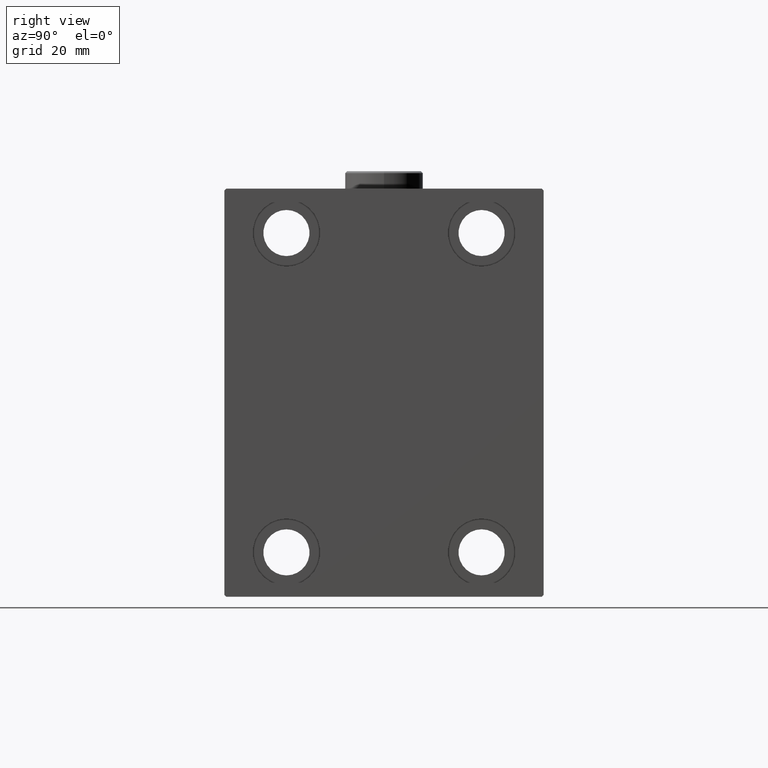
[diagram: clean part render]
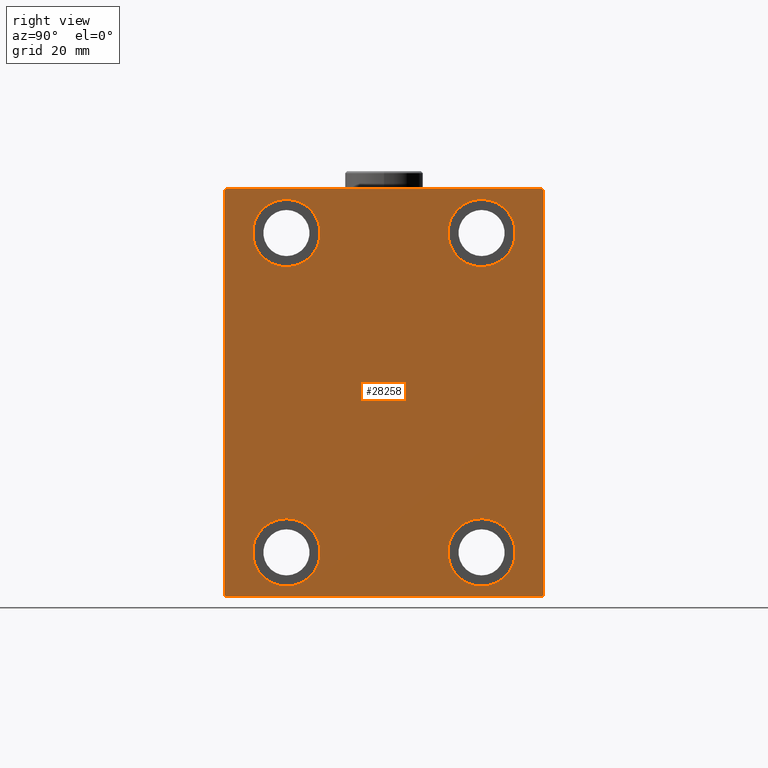
[diagram: same view with one face highlighted and labeled with its STEP entity id]
A machine part, right view. The second image highlights one B-rep face of the part: STEP entity #28258.
In plain terms, the highlighted planar face has unit normal (1, 0, 0).
Its self-contained STEP definition (entity closure, byte-faithful):
#45 = ORIENTED_EDGE ( 'NONE', *, *, #35617, .T. ) ;
#300 = AXIS2_PLACEMENT_3D ( 'NONE', #7295, #13921, #3858 ) ;
#684 = DIRECTION ( 'NONE',  ( -1.000000000000000000, -0.000000000000000000, -0.000000000000000000 ) ) ;
#699 = EDGE_LOOP ( 'NONE', ( #41057, #41609, #5205, #3253, #24209, #6046, #41050, #21435 ) ) ;
#1427 = EDGE_CURVE ( 'NONE', #3983, #23349, #14495, .T. ) ;
#1507 = VERTEX_POINT ( 'NONE', #35599 ) ;
#2040 = CARTESIAN_POINT ( 'NONE',  ( 128.0000000000000000, -27.49999999999998934, 45.00000000000000711 ) ) ;
#2052 = VERTEX_POINT ( 'NONE', #22386 ) ;
#2245 = VECTOR ( 'NONE', #36587, 1000.000000000000000 ) ;
#2473 = VERTEX_POINT ( 'NONE', #24308 ) ;
#3253 = ORIENTED_EDGE ( 'NONE', *, *, #37027, .T. ) ;
#3767 = CARTESIAN_POINT ( 'NONE',  ( 128.0000000000000000, -44.50000000000002842, -57.50000000000000711 ) ) ;
#3858 = DIRECTION ( 'NONE',  ( 0.000000000000000000, 0.000000000000000000, 1.000000000000000000 ) ) ;
#3966 = CARTESIAN_POINT ( 'NONE',  ( 128.0000000000000000, -51.00000000000001421, -51.00000000000001421 ) ) ;
#3983 = VERTEX_POINT ( 'NONE', #21772 ) ;
#4149 = AXIS2_PLACEMENT_3D ( 'NONE', #14783, #12041, #11369 ) ;
#4440 = VERTEX_POINT ( 'NONE', #3767 ) ;
#4564 = DIRECTION ( 'NONE',  ( -1.000000000000000000, -0.000000000000000000, -0.000000000000000000 ) ) ;
#5010 = DIRECTION ( 'NONE',  ( 1.000000000000000000, 0.000000000000000000, 0.000000000000000000 ) ) ;
#5205 = ORIENTED_EDGE ( 'NONE', *, *, #8964, .T. ) ;
#5231 = FACE_BOUND ( 'NONE', #27411, .T. ) ;
#5964 = EDGE_LOOP ( 'NONE', ( #37350, #45 ) ) ;
#6046 = ORIENTED_EDGE ( 'NONE', *, *, #36023, .T. ) ;
#6310 = DIRECTION ( 'NONE',  ( 0.000000000000000000, -0.7071067811865474617, -0.7071067811865474617 ) ) ;
#7108 = DIRECTION ( 'NONE',  ( 0.000000000000000000, 0.000000000000000000, 1.000000000000000000 ) ) ;
#7129 = VERTEX_POINT ( 'NONE', #25474 ) ;
#7214 = ORIENTED_EDGE ( 'NONE', *, *, #10691, .T. ) ;
#7295 = CARTESIAN_POINT ( 'NONE',  ( 128.0000000000000000, 27.49999999999998934, -44.99999999999998579 ) ) ;
#7633 = EDGE_CURVE ( 'NONE', #2052, #7129, #27989, .T. ) ;
#8170 = CIRCLE ( 'NONE', #30114, 9.500000000000001776 ) ;
#8175 = VECTOR ( 'NONE', #39259, 1000.000000000000000 ) ;
#8430 = VECTOR ( 'NONE', #34132, 1000.000000000000000 ) ;
#8829 = DIRECTION ( 'NONE',  ( 0.000000000000000000, 1.000000000000000000, 0.000000000000000000 ) ) ;
#8878 = VECTOR ( 'NONE', #6310, 1000.000000000000114 ) ;
#8964 = EDGE_CURVE ( 'NONE', #17143, #11063, #17917, .T. ) ;
#9202 = EDGE_LOOP ( 'NONE', ( #11363, #11035 ) ) ;
#9326 = CARTESIAN_POINT ( 'NONE',  ( 128.0000000000000000, -44.49999999999997158, 57.49999999999999289 ) ) ;
#9424 = CARTESIAN_POINT ( 'NONE',  ( 128.0000000000000000, 45.00000000000000000, 57.00000000000000711 ) ) ;
#9494 = EDGE_CURVE ( 'NONE', #11637, #13019, #37546, .T. ) ;
#9752 = LINE ( 'NONE', #26704, #8878 ) ;
#10275 = VECTOR ( 'NONE', #24804, 1000.000000000000114 ) ;
#10691 = EDGE_CURVE ( 'NONE', #7129, #2052, #29533, .T. ) ;
#10694 = CARTESIAN_POINT ( 'NONE',  ( 128.0000000000000000, -27.50000000000000000, -54.49999999999998579 ) ) ;
#11035 = ORIENTED_EDGE ( 'NONE', *, *, #29726, .T. ) ;
#11063 = VERTEX_POINT ( 'NONE', #22096 ) ;
#11363 = ORIENTED_EDGE ( 'NONE', *, *, #9494, .T. ) ;
#11369 = DIRECTION ( 'NONE',  ( 0.000000000000000000, 0.000000000000000000, 1.000000000000000000 ) ) ;
#11637 = VERTEX_POINT ( 'NONE', #21318 ) ;
#11871 = CARTESIAN_POINT ( 'NONE',  ( 128.0000000000000000, -27.50000000000000000, -35.49999999999998579 ) ) ;
#12041 = DIRECTION ( 'NONE',  ( -1.000000000000000000, -0.000000000000000000, -0.000000000000000000 ) ) ;
#12809 = CARTESIAN_POINT ( 'NONE',  ( 128.0000000000000000, 27.50000000000001066, 45.00000000000000711 ) ) ;
#12848 = VERTEX_POINT ( 'NONE', #10694 ) ;
#13019 = VERTEX_POINT ( 'NONE', #37182 ) ;
#13184 = DIRECTION ( 'NONE',  ( -1.000000000000000000, -0.000000000000000000, -0.000000000000000000 ) ) ;
#13526 = ORIENTED_EDGE ( 'NONE', *, *, #22099, .T. ) ;
#13921 = DIRECTION ( 'NONE',  ( -1.000000000000000000, -0.000000000000000000, -0.000000000000000000 ) ) ;
#14129 = EDGE_LOOP ( 'NONE', ( #7214, #14509 ) ) ;
#14495 = LINE ( 'NONE', #31932, #8175 ) ;
#14509 = ORIENTED_EDGE ( 'NONE', *, *, #7633, .T. ) ;
#14646 = VECTOR ( 'NONE', #32188, 1000.000000000000000 ) ;
#14783 = CARTESIAN_POINT ( 'NONE',  ( 128.0000000000000000, 27.50000000000001066, 45.00000000000000711 ) ) ;
#14955 = EDGE_CURVE ( 'NONE', #2473, #37283, #38238, .T. ) ;
#15258 = LINE ( 'NONE', #22593, #2245 ) ;
#15292 = FACE_BOUND ( 'NONE', #5964, .T. ) ;
#15518 = EDGE_CURVE ( 'NONE', #4440, #30146, #43654, .T. ) ;
#16191 = PLANE ( 'NONE',  #45303 ) ;
#16906 = CARTESIAN_POINT ( 'NONE',  ( 128.0000000000000000, 45.00000000000001421, -57.50000000000000711 ) ) ;
#17143 = VERTEX_POINT ( 'NONE', #22991 ) ;
#17543 = ORIENTED_EDGE ( 'NONE', *, *, #25886, .T. ) ;
#17917 = LINE ( 'NONE', #42226, #28744 ) ;
#18364 = LINE ( 'NONE', #3966, #10275 ) ;
#18568 = EDGE_CURVE ( 'NONE', #12848, #28273, #38572, .T. ) ;
#19410 = CARTESIAN_POINT ( 'NONE',  ( 128.0000000000000000, 0.000000000000000000, 0.000000000000000000 ) ) ;
#20169 = DIRECTION ( 'NONE',  ( -1.000000000000000000, -0.000000000000000000, -0.000000000000000000 ) ) ;
#20612 = DIRECTION ( 'NONE',  ( 0.000000000000000000, 0.000000000000000000, 1.000000000000000000 ) ) ;
#21008 = CARTESIAN_POINT ( 'NONE',  ( 128.0000000000000000, -27.50000000000000000, -44.99999999999998579 ) ) ;
#21318 = CARTESIAN_POINT ( 'NONE',  ( 128.0000000000000000, -27.49999999999998934, 35.50000000000000711 ) ) ;
#21435 = ORIENTED_EDGE ( 'NONE', *, *, #31850, .T. ) ;
#21695 = CIRCLE ( 'NONE', #4149, 9.500000000000001776 ) ;
#21739 = DIRECTION ( 'NONE',  ( 0.000000000000000000, 0.000000000000000000, 1.000000000000000000 ) ) ;
#21772 = CARTESIAN_POINT ( 'NONE',  ( 128.0000000000000000, 44.50000000000000000, 57.50000000000000711 ) ) ;
#22096 = CARTESIAN_POINT ( 'NONE',  ( 128.0000000000000000, -45.00000000000000000, -57.00000000000003553 ) ) ;
#22099 = EDGE_CURVE ( 'NONE', #1507, #31830, #21695, .T. ) ;
#22386 = CARTESIAN_POINT ( 'NONE',  ( 128.0000000000000000, 27.49999999999998934, -35.49999999999998579 ) ) ;
#22416 = CARTESIAN_POINT ( 'NONE',  ( 128.0000000000000000, -27.49999999999998934, 45.00000000000000711 ) ) ;
#22565 = CARTESIAN_POINT ( 'NONE',  ( 128.0000000000000000, -45.00000000000000000, -57.50000000000000711 ) ) ;
#22593 = CARTESIAN_POINT ( 'NONE',  ( 128.0000000000000000, 50.99999999999877076, 51.00000000000159162 ) ) ;
#22991 = CARTESIAN_POINT ( 'NONE',  ( 128.0000000000000000, -45.00000000000000000, 56.99999999999999289 ) ) ;
#23349 = VERTEX_POINT ( 'NONE', #9326 ) ;
#23859 = VECTOR ( 'NONE', #8829, 1000.000000000000000 ) ;
#24209 = ORIENTED_EDGE ( 'NONE', *, *, #15518, .T. ) ;
#24308 = CARTESIAN_POINT ( 'NONE',  ( 128.0000000000000000, 45.00000000000001421, -57.00000000000000711 ) ) ;
#24744 = CIRCLE ( 'NONE', #37935, 9.500000000000001776 ) ;
#24804 = DIRECTION ( 'NONE',  ( -0.000000000000000000, 0.7071067811865474617, -0.7071067811865474617 ) ) ;
#25474 = CARTESIAN_POINT ( 'NONE',  ( 128.0000000000000000, 27.49999999999998934, -54.49999999999998579 ) ) ;
#25886 = EDGE_CURVE ( 'NONE', #31830, #1507, #24744, .T. ) ;
#26528 = FACE_OUTER_BOUND ( 'NONE', #699, .T. ) ;
#26570 = DIRECTION ( 'NONE',  ( 0.000000000000000000, 0.000000000000000000, 1.000000000000000000 ) ) ;
#26704 = CARTESIAN_POINT ( 'NONE',  ( 128.0000000000000000, -51.00000000000000000, 51.00000000000000000 ) ) ;
#27411 = EDGE_LOOP ( 'NONE', ( #17543, #13526 ) ) ;
#27774 = CARTESIAN_POINT ( 'NONE',  ( 128.0000000000000000, 44.50000000000001421, -57.50000000000000711 ) ) ;
#27953 = CARTESIAN_POINT ( 'NONE',  ( 128.0000000000000000, 27.49999999999998934, -44.99999999999998579 ) ) ;
#27989 = CIRCLE ( 'NONE', #36757, 9.500000000000001776 ) ;
#28258 = ADVANCED_FACE ( 'NONE', ( #32964, #36405, #5231, #15292, #26528 ), #16191, .T. ) ;
#28273 = VERTEX_POINT ( 'NONE', #11871 ) ;
#28744 = VECTOR ( 'NONE', #31466, 1000.000000000000000 ) ;
#28970 = CARTESIAN_POINT ( 'NONE',  ( 128.0000000000000000, 51.00000000000125056, -50.99999999999842970 ) ) ;
#29533 = CIRCLE ( 'NONE', #300, 9.500000000000001776 ) ;
#29726 = EDGE_CURVE ( 'NONE', #13019, #11637, #43880, .T. ) ;
#30114 = AXIS2_PLACEMENT_3D ( 'NONE', #21008, #34546, #31569 ) ;
#30146 = VERTEX_POINT ( 'NONE', #27774 ) ;
#31466 = DIRECTION ( 'NONE',  ( 0.000000000000000000, 0.000000000000000000, -1.000000000000000000 ) ) ;
#31569 = DIRECTION ( 'NONE',  ( 0.000000000000000000, 0.000000000000000000, 1.000000000000000000 ) ) ;
#31830 = VERTEX_POINT ( 'NONE', #40024 ) ;
#31850 = EDGE_CURVE ( 'NONE', #37283, #3983, #15258, .T. ) ;
#31932 = CARTESIAN_POINT ( 'NONE',  ( 128.0000000000000000, 45.00000000000000000, 57.50000000000000711 ) ) ;
#32188 = DIRECTION ( 'NONE',  ( -0.000000000000000000, 0.7071067811865279218, 0.7071067811865671127 ) ) ;
#32964 = FACE_BOUND ( 'NONE', #14129, .T. ) ;
#33461 = AXIS2_PLACEMENT_3D ( 'NONE', #34619, #20169, #20612 ) ;
#34132 = DIRECTION ( 'NONE',  ( 0.000000000000000000, -1.206764157201257045E-16, 1.000000000000000000 ) ) ;
#34546 = DIRECTION ( 'NONE',  ( -1.000000000000000000, -0.000000000000000000, -0.000000000000000000 ) ) ;
#34619 = CARTESIAN_POINT ( 'NONE',  ( 128.0000000000000000, -27.50000000000000000, -44.99999999999998579 ) ) ;
#35599 = CARTESIAN_POINT ( 'NONE',  ( 128.0000000000000000, 27.50000000000001066, 54.50000000000000711 ) ) ;
#35617 = EDGE_CURVE ( 'NONE', #28273, #12848, #8170, .T. ) ;
#35857 = LINE ( 'NONE', #28970, #14646 ) ;
#36023 = EDGE_CURVE ( 'NONE', #30146, #2473, #35857, .T. ) ;
#36405 = FACE_BOUND ( 'NONE', #9202, .T. ) ;
#36587 = DIRECTION ( 'NONE',  ( -0.000000000000000000, -0.7071067811865671127, 0.7071067811865279218 ) ) ;
#36757 = AXIS2_PLACEMENT_3D ( 'NONE', #27953, #4564, #7108 ) ;
#37027 = EDGE_CURVE ( 'NONE', #11063, #4440, #18364, .T. ) ;
#37182 = CARTESIAN_POINT ( 'NONE',  ( 128.0000000000000000, -27.49999999999998934, 54.50000000000000711 ) ) ;
#37283 = VERTEX_POINT ( 'NONE', #9424 ) ;
#37350 = ORIENTED_EDGE ( 'NONE', *, *, #18568, .T. ) ;
#37546 = CIRCLE ( 'NONE', #43395, 9.500000000000001776 ) ;
#37935 = AXIS2_PLACEMENT_3D ( 'NONE', #12809, #44219, #26570 ) ;
#38238 = LINE ( 'NONE', #16906, #8430 ) ;
#38572 = CIRCLE ( 'NONE', #33461, 9.500000000000001776 ) ;
#39032 = EDGE_CURVE ( 'NONE', #23349, #17143, #9752, .T. ) ;
#39259 = DIRECTION ( 'NONE',  ( 0.000000000000000000, -1.000000000000000000, -1.541976423090495387E-16 ) ) ;
#40024 = CARTESIAN_POINT ( 'NONE',  ( 128.0000000000000000, 27.50000000000001066, 35.50000000000000711 ) ) ;
#40938 = AXIS2_PLACEMENT_3D ( 'NONE', #22416, #684, #21739 ) ;
#41050 = ORIENTED_EDGE ( 'NONE', *, *, #14955, .T. ) ;
#41057 = ORIENTED_EDGE ( 'NONE', *, *, #1427, .T. ) ;
#41609 = ORIENTED_EDGE ( 'NONE', *, *, #39032, .T. ) ;
#41827 = DIRECTION ( 'NONE',  ( 0.000000000000000000, 0.000000000000000000, 1.000000000000000000 ) ) ;
#42226 = CARTESIAN_POINT ( 'NONE',  ( 128.0000000000000000, -45.00000000000000000, 57.49999999999999289 ) ) ;
#43395 = AXIS2_PLACEMENT_3D ( 'NONE', #2040, #13184, #41827 ) ;
#43500 = DIRECTION ( 'NONE',  ( 0.000000000000000000, 0.000000000000000000, -1.000000000000000000 ) ) ;
#43654 = LINE ( 'NONE', #22565, #23859 ) ;
#43880 = CIRCLE ( 'NONE', #40938, 9.500000000000001776 ) ;
#44219 = DIRECTION ( 'NONE',  ( -1.000000000000000000, -0.000000000000000000, -0.000000000000000000 ) ) ;
#45303 = AXIS2_PLACEMENT_3D ( 'NONE', #19410, #5010, #43500 ) ;